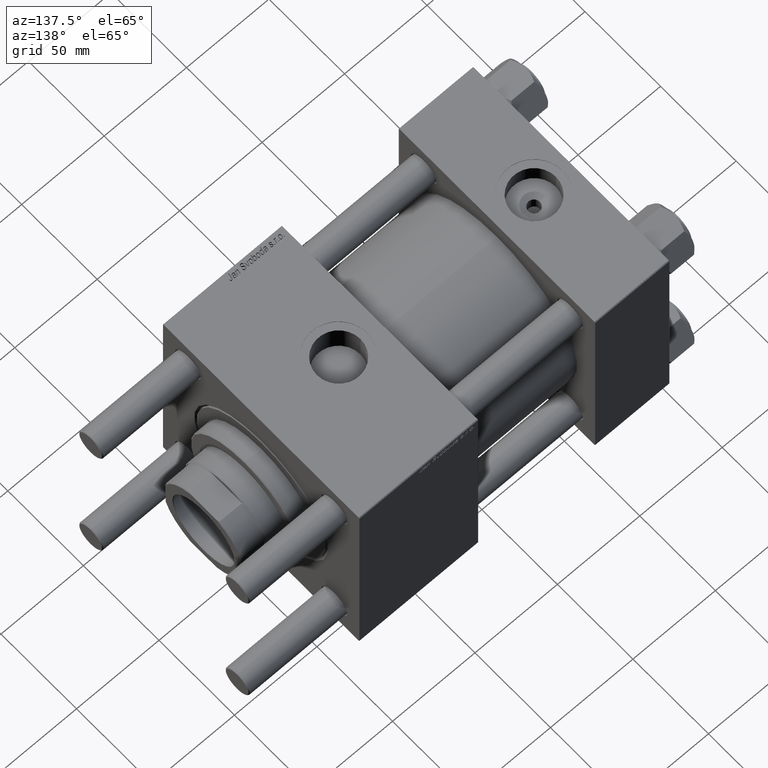
[diagram: clean part render]
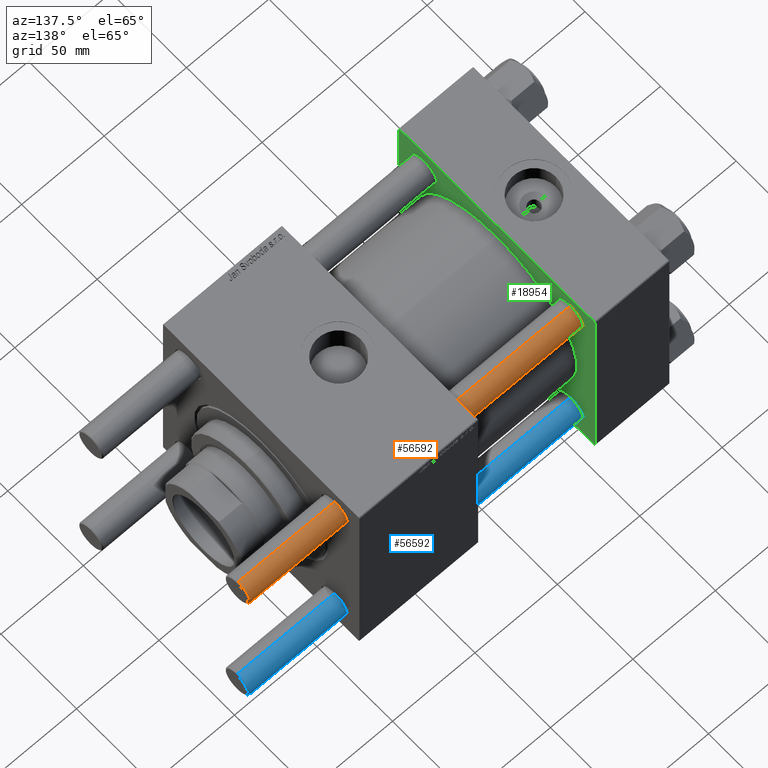
[diagram: same view with three faces highlighted in distinct colors, each labeled with its STEP entity id]
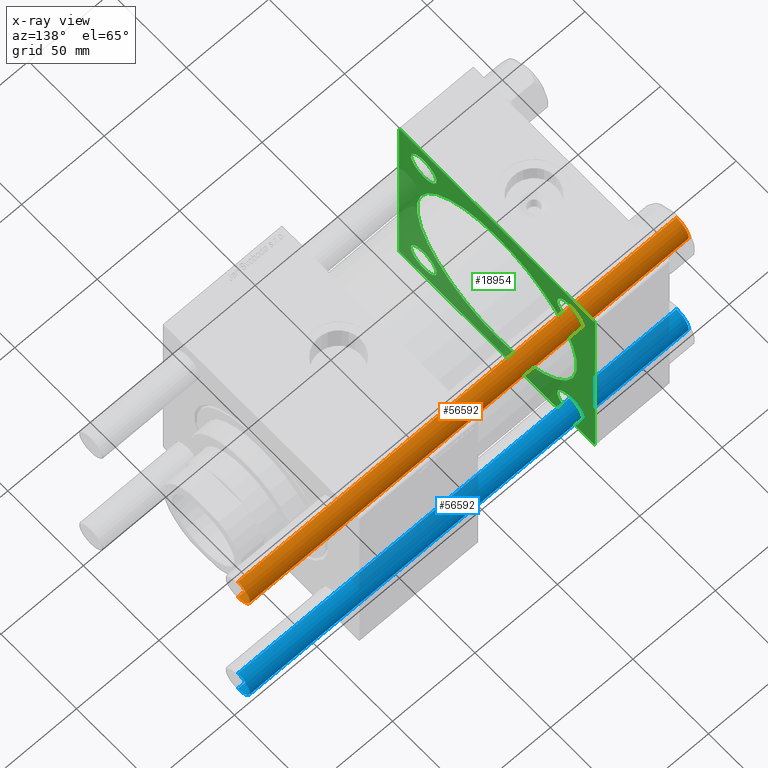
[diagram: x-ray of the same camera — body ghosted, the three highlighted faces saturated]
A machine part, auxiliary view with three faces highlighted in distinct colors.
The next image is the same camera in x-ray (body ghosted, the three faces saturated) — at least one of them is partly hidden behind the body in this view.
Their STEP definitions:

[orange] entity #56592 — the highlighted cylindrical surface (edge-blend (fillet) strip) has radius 8 mm, axis along (1, -0, -0).
#2039 = VERTEX_POINT ( 'NONE', #37528 ) ;
#6804 = ORIENTED_EDGE ( 'NONE', *, *, #56704, .T. ) ;
#6972 = DIRECTION ( 'NONE',  ( -0.000000000000000000, -0.000000000000000000, 1.000000000000000000 ) ) ;
#7949 = ORIENTED_EDGE ( 'NONE', *, *, #58388, .T. ) ;
#8044 = DIRECTION ( 'NONE',  ( -0.000000000000000000, -0.000000000000000000, -1.000000000000000000 ) ) ;
#9190 = CARTESIAN_POINT ( 'NONE',  ( 8.000000000000000000, 9.797174393178825657E-16, 0.5000000000000559552 ) ) ;
#9587 = CYLINDRICAL_SURFACE ( 'NONE', #34745, 8.000000000000000000 ) ;
#9875 = DIRECTION ( 'NONE',  ( -0.000000000000000000, -0.000000000000000000, -1.000000000000000000 ) ) ;
#12598 = EDGE_CURVE ( 'NONE', #2039, #16450, #44226, .T. ) ;
#13600 = ORIENTED_EDGE ( 'NONE', *, *, #12598, .T. ) ;
#16420 = CARTESIAN_POINT ( 'NONE',  ( 8.000000000000000000, 9.797174393178825657E-16, 267.0000000000000000 ) ) ;
#16450 = VERTEX_POINT ( 'NONE', #47491 ) ;
#17294 = VECTOR ( 'NONE', #8044, 1000.000000000000000 ) ;
#17519 = ORIENTED_EDGE ( 'NONE', *, *, #27110, .F. ) ;
#20992 = VERTEX_POINT ( 'NONE', #48268 ) ;
#24363 = AXIS2_PLACEMENT_3D ( 'NONE', #47216, #6972, #42453 ) ;
#26821 = CARTESIAN_POINT ( 'NONE',  ( -8.000000000000000000, 0.000000000000000000, 267.0000000000000000 ) ) ;
#27110 = EDGE_CURVE ( 'NONE', #2039, #20992, #48872, .T. ) ;
#28830 = DIRECTION ( 'NONE',  ( 1.000000000000000000, 0.000000000000000000, 0.000000000000000000 ) ) ;
#30133 = EDGE_LOOP ( 'NONE', ( #13600, #6804, #7949, #17519 ) ) ;
#31017 = CIRCLE ( 'NONE', #24363, 8.000000000000000000 ) ;
#32814 = VECTOR ( 'NONE', #48308, 1000.000000000000000 ) ;
#32816 = DIRECTION ( 'NONE',  ( -1.000000000000000000, 0.000000000000000000, 0.000000000000000000 ) ) ;
#34745 = AXIS2_PLACEMENT_3D ( 'NONE', #45941, #9875, #32816 ) ;
#37528 = CARTESIAN_POINT ( 'NONE',  ( -8.000000000000000000, 0.000000000000000000, 266.5000000000000568 ) ) ;
#41932 = VERTEX_POINT ( 'NONE', #9190 ) ;
#42453 = DIRECTION ( 'NONE',  ( 1.000000000000000000, 0.000000000000000000, 0.000000000000000000 ) ) ;
#44226 = CIRCLE ( 'NONE', #51828, 8.000000000000000000 ) ;
#45941 = CARTESIAN_POINT ( 'NONE',  ( 0.000000000000000000, 0.000000000000000000, 267.0000000000000000 ) ) ;
#47216 = CARTESIAN_POINT ( 'NONE',  ( 0.000000000000000000, 0.000000000000000000, 0.5000000000000559552 ) ) ;
#47491 = CARTESIAN_POINT ( 'NONE',  ( 8.000000000000000000, 9.797174393178825657E-16, 266.5000000000000568 ) ) ;
#47599 = DIRECTION ( 'NONE',  ( 0.000000000000000000, 0.000000000000000000, -1.000000000000000000 ) ) ;
#47890 = CARTESIAN_POINT ( 'NONE',  ( 0.000000000000000000, 0.000000000000000000, 266.5000000000000568 ) ) ;
#48008 = LINE ( 'NONE', #16420, #32814 ) ;
#48268 = CARTESIAN_POINT ( 'NONE',  ( -8.000000000000000000, 0.000000000000000000, 0.5000000000000559552 ) ) ;
#48308 = DIRECTION ( 'NONE',  ( -0.000000000000000000, -0.000000000000000000, -1.000000000000000000 ) ) ;
#48872 = LINE ( 'NONE', #26821, #17294 ) ;
#51828 = AXIS2_PLACEMENT_3D ( 'NONE', #47890, #47599, #28830 ) ;
#55478 = FACE_OUTER_BOUND ( 'NONE', #30133, .T. ) ;
#56592 = ADVANCED_FACE ( 'NONE', ( #55478 ), #9587, .T. ) ;
#56704 = EDGE_CURVE ( 'NONE', #16450, #41932, #48008, .T. ) ;
#58388 = EDGE_CURVE ( 'NONE', #41932, #20992, #31017, .T. ) ;

[blue] entity #56592 — the highlighted cylindrical surface (edge-blend (fillet) strip) has radius 8 mm, axis along (-1, -0, 0).
#2039 = VERTEX_POINT ( 'NONE', #37528 ) ;
#6804 = ORIENTED_EDGE ( 'NONE', *, *, #56704, .T. ) ;
#6972 = DIRECTION ( 'NONE',  ( -0.000000000000000000, -0.000000000000000000, 1.000000000000000000 ) ) ;
#7949 = ORIENTED_EDGE ( 'NONE', *, *, #58388, .T. ) ;
#8044 = DIRECTION ( 'NONE',  ( -0.000000000000000000, -0.000000000000000000, -1.000000000000000000 ) ) ;
#9190 = CARTESIAN_POINT ( 'NONE',  ( 8.000000000000000000, 9.797174393178825657E-16, 0.5000000000000559552 ) ) ;
#9587 = CYLINDRICAL_SURFACE ( 'NONE', #34745, 8.000000000000000000 ) ;
#9875 = DIRECTION ( 'NONE',  ( -0.000000000000000000, -0.000000000000000000, -1.000000000000000000 ) ) ;
#12598 = EDGE_CURVE ( 'NONE', #2039, #16450, #44226, .T. ) ;
#13600 = ORIENTED_EDGE ( 'NONE', *, *, #12598, .T. ) ;
#16420 = CARTESIAN_POINT ( 'NONE',  ( 8.000000000000000000, 9.797174393178825657E-16, 267.0000000000000000 ) ) ;
#16450 = VERTEX_POINT ( 'NONE', #47491 ) ;
#17294 = VECTOR ( 'NONE', #8044, 1000.000000000000000 ) ;
#17519 = ORIENTED_EDGE ( 'NONE', *, *, #27110, .F. ) ;
#20992 = VERTEX_POINT ( 'NONE', #48268 ) ;
#24363 = AXIS2_PLACEMENT_3D ( 'NONE', #47216, #6972, #42453 ) ;
#26821 = CARTESIAN_POINT ( 'NONE',  ( -8.000000000000000000, 0.000000000000000000, 267.0000000000000000 ) ) ;
#27110 = EDGE_CURVE ( 'NONE', #2039, #20992, #48872, .T. ) ;
#28830 = DIRECTION ( 'NONE',  ( 1.000000000000000000, 0.000000000000000000, 0.000000000000000000 ) ) ;
#30133 = EDGE_LOOP ( 'NONE', ( #13600, #6804, #7949, #17519 ) ) ;
#31017 = CIRCLE ( 'NONE', #24363, 8.000000000000000000 ) ;
#32814 = VECTOR ( 'NONE', #48308, 1000.000000000000000 ) ;
#32816 = DIRECTION ( 'NONE',  ( -1.000000000000000000, 0.000000000000000000, 0.000000000000000000 ) ) ;
#34745 = AXIS2_PLACEMENT_3D ( 'NONE', #45941, #9875, #32816 ) ;
#37528 = CARTESIAN_POINT ( 'NONE',  ( -8.000000000000000000, 0.000000000000000000, 266.5000000000000568 ) ) ;
#41932 = VERTEX_POINT ( 'NONE', #9190 ) ;
#42453 = DIRECTION ( 'NONE',  ( 1.000000000000000000, 0.000000000000000000, 0.000000000000000000 ) ) ;
#44226 = CIRCLE ( 'NONE', #51828, 8.000000000000000000 ) ;
#45941 = CARTESIAN_POINT ( 'NONE',  ( 0.000000000000000000, 0.000000000000000000, 267.0000000000000000 ) ) ;
#47216 = CARTESIAN_POINT ( 'NONE',  ( 0.000000000000000000, 0.000000000000000000, 0.5000000000000559552 ) ) ;
#47491 = CARTESIAN_POINT ( 'NONE',  ( 8.000000000000000000, 9.797174393178825657E-16, 266.5000000000000568 ) ) ;
#47599 = DIRECTION ( 'NONE',  ( 0.000000000000000000, 0.000000000000000000, -1.000000000000000000 ) ) ;
#47890 = CARTESIAN_POINT ( 'NONE',  ( 0.000000000000000000, 0.000000000000000000, 266.5000000000000568 ) ) ;
#48008 = LINE ( 'NONE', #16420, #32814 ) ;
#48268 = CARTESIAN_POINT ( 'NONE',  ( -8.000000000000000000, 0.000000000000000000, 0.5000000000000559552 ) ) ;
#48308 = DIRECTION ( 'NONE',  ( -0.000000000000000000, -0.000000000000000000, -1.000000000000000000 ) ) ;
#48872 = LINE ( 'NONE', #26821, #17294 ) ;
#51828 = AXIS2_PLACEMENT_3D ( 'NONE', #47890, #47599, #28830 ) ;
#55478 = FACE_OUTER_BOUND ( 'NONE', #30133, .T. ) ;
#56592 = ADVANCED_FACE ( 'NONE', ( #55478 ), #9587, .T. ) ;
#56704 = EDGE_CURVE ( 'NONE', #16450, #41932, #48008, .T. ) ;
#58388 = EDGE_CURVE ( 'NONE', #41932, #20992, #31017, .T. ) ;

[green] entity #18954 — the highlighted planar face has unit normal (-1, 0, 0).
#158 = CARTESIAN_POINT ( 'NONE',  ( 45.00000000000000000, -64.49999999999994316, -65.00000000000000000 ) ) ;
#324 = DIRECTION ( 'NONE',  ( 0.000000000000000000, 0.000000000000000000, 1.000000000000000000 ) ) ;
#824 = CARTESIAN_POINT ( 'NONE',  ( 45.00000000000000000, 65.00000000000000000, -64.99999999999998579 ) ) ;
#895 = ORIENTED_EDGE ( 'NONE', *, *, #26245, .T. ) ;
#1909 = LINE ( 'NONE', #24272, #58677 ) ;
#2466 = VECTOR ( 'NONE', #44922, 1000.000000000000000 ) ;
#2695 = ORIENTED_EDGE ( 'NONE', *, *, #56178, .T. ) ;
#2899 = EDGE_CURVE ( 'NONE', #24928, #40523, #45007, .T. ) ;
#3783 = DIRECTION ( 'NONE',  ( 0.000000000000000000, 0.000000000000000000, 1.000000000000000000 ) ) ;
#4045 = CARTESIAN_POINT ( 'NONE',  ( 45.00000000000000000, -2.602085213965210642E-15, 0.000000000000000000 ) ) ;
#4279 = CIRCLE ( 'NONE', #37567, 8.499999999999980460 ) ;
#4846 = EDGE_LOOP ( 'NONE', ( #895, #41365 ) ) ;
#4914 = EDGE_CURVE ( 'NONE', #37483, #28959, #37469, .T. ) ;
#5107 = DIRECTION ( 'NONE',  ( -1.000000000000000000, 0.000000000000000000, -0.000000000000000000 ) ) ;
#5588 = CARTESIAN_POINT ( 'NONE',  ( 45.00000000000000000, 48.45000000000000995, 39.95000000000003126 ) ) ;
#5707 = LINE ( 'NONE', #18535, #38453 ) ;
#5962 = DIRECTION ( 'NONE',  ( -1.000000000000000000, 0.000000000000000000, -0.000000000000000000 ) ) ;
#6470 = VECTOR ( 'NONE', #41009, 1000.000000000000114 ) ;
#6780 = CARTESIAN_POINT ( 'NONE',  ( 45.00000000000000000, 48.45000000000000995, 56.94999999999999574 ) ) ;
#7286 = CARTESIAN_POINT ( 'NONE',  ( 45.00000000000000000, 48.45000000000000995, -56.94999999999999574 ) ) ;
#8338 = DIRECTION ( 'NONE',  ( 0.000000000000000000, 0.000000000000000000, -1.000000000000000000 ) ) ;
#8370 = CARTESIAN_POINT ( 'NONE',  ( 45.00000000000000000, 65.00000000000000000, 64.49999999999998579 ) ) ;
#9163 = AXIS2_PLACEMENT_3D ( 'NONE', #4045, #22236, #40415 ) ;
#9660 = AXIS2_PLACEMENT_3D ( 'NONE', #50400, #45629, #17934 ) ;
#10087 = CARTESIAN_POINT ( 'NONE',  ( 45.00000000000000000, 65.00000000000000000, 65.00000000000001421 ) ) ;
#10209 = EDGE_LOOP ( 'NONE', ( #32494, #24480 ) ) ;
#10785 = VECTOR ( 'NONE', #23788, 1000.000000000000000 ) ;
#11125 = CARTESIAN_POINT ( 'NONE',  ( 45.00000000000000000, 48.45000000000000995, 48.45000000000001705 ) ) ;
#11739 = EDGE_LOOP ( 'NONE', ( #29734, #20014 ) ) ;
#12105 = CIRCLE ( 'NONE', #22561, 8.499999999999980460 ) ;
#12186 = VECTOR ( 'NONE', #22609, 1000.000000000000000 ) ;
#12341 = VERTEX_POINT ( 'NONE', #55214 ) ;
#12445 = DIRECTION ( 'NONE',  ( -1.000000000000000000, 0.000000000000000000, -0.000000000000000000 ) ) ;
#12617 = FACE_BOUND ( 'NONE', #45969, .T. ) ;
#12848 = DIRECTION ( 'NONE',  ( 0.000000000000000000, 0.000000000000000000, 1.000000000000000000 ) ) ;
#12999 = EDGE_CURVE ( 'NONE', #40523, #24928, #39456, .T. ) ;
#13389 = DIRECTION ( 'NONE',  ( 0.000000000000000000, 0.7071067811865279218, -0.7071067811865671127 ) ) ;
#13907 = CARTESIAN_POINT ( 'NONE',  ( 45.00000000000000000, -65.00000000000000000, 65.00000000000000000 ) ) ;
#14307 = ORIENTED_EDGE ( 'NONE', *, *, #48737, .F. ) ;
#14891 = ORIENTED_EDGE ( 'NONE', *, *, #2899, .T. ) ;
#14947 = FACE_BOUND ( 'NONE', #37631, .T. ) ;
#14950 = CARTESIAN_POINT ( 'NONE',  ( 45.00000000000000000, 48.45000000000000995, -39.95000000000003126 ) ) ;
#15015 = VERTEX_POINT ( 'NONE', #50303 ) ;
#15300 = ORIENTED_EDGE ( 'NONE', *, *, #21208, .T. ) ;
#15802 = VERTEX_POINT ( 'NONE', #5588 ) ;
#15837 = VECTOR ( 'NONE', #13389, 1000.000000000000000 ) ;
#15949 = DIRECTION ( 'NONE',  ( 0.000000000000000000, 0.000000000000000000, 1.000000000000000000 ) ) ;
#16321 = CARTESIAN_POINT ( 'NONE',  ( 45.00000000000000000, -65.00000000000000000, -64.49999999999991473 ) ) ;
#17567 = LINE ( 'NONE', #54507, #31538 ) ;
#17934 = DIRECTION ( 'NONE',  ( 0.000000000000000000, 0.000000000000000000, 1.000000000000000000 ) ) ;
#18037 = EDGE_CURVE ( 'NONE', #20305, #12341, #39639, .T. ) ;
#18103 = EDGE_CURVE ( 'NONE', #28959, #47841, #1909, .T. ) ;
#18533 = CARTESIAN_POINT ( 'NONE',  ( 45.00000000000000000, 0.000000000000000000, 0.000000000000000000 ) ) ;
#18535 = CARTESIAN_POINT ( 'NONE',  ( 45.00000000000000000, 64.49999999999997158, 65.00000000000001421 ) ) ;
#18954 = ADVANCED_FACE ( 'NONE', ( #12617, #46826, #14947, #27773, #33119, #55482 ), #46243, .F. ) ;
#20014 = ORIENTED_EDGE ( 'NONE', *, *, #18037, .F. ) ;
#20042 = CARTESIAN_POINT ( 'NONE',  ( 45.00000000000000000, -48.44999999999999574, 48.45000000000003126 ) ) ;
#20090 = DIRECTION ( 'NONE',  ( -0.000000000000000000, -0.7071067811865672237, -0.7071067811865279218 ) ) ;
#20305 = VERTEX_POINT ( 'NONE', #40776 ) ;
#20365 = ORIENTED_EDGE ( 'NONE', *, *, #12999, .T. ) ;
#21208 = EDGE_CURVE ( 'NONE', #15015, #37238, #22027, .T. ) ;
#21377 = CARTESIAN_POINT ( 'NONE',  ( 45.00000000000000000, 48.45000000000000995, -48.45000000000001705 ) ) ;
#21671 = EDGE_CURVE ( 'NONE', #29925, #36604, #17567, .T. ) ;
#21881 = AXIS2_PLACEMENT_3D ( 'NONE', #31623, #54283, #324 ) ;
#22027 = CIRCLE ( 'NONE', #9660, 8.499999999999980460 ) ;
#22236 = DIRECTION ( 'NONE',  ( 1.000000000000000000, -0.000000000000000000, 0.000000000000000000 ) ) ;
#22561 = AXIS2_PLACEMENT_3D ( 'NONE', #58759, #49212, #12848 ) ;
#22609 = DIRECTION ( 'NONE',  ( 0.000000000000000000, -1.000000000000000000, -1.067522139062650425E-16 ) ) ;
#23027 = AXIS2_PLACEMENT_3D ( 'NONE', #11125, #25427, #56423 ) ;
#23208 = LINE ( 'NONE', #54230, #15837 ) ;
#23302 = DIRECTION ( 'NONE',  ( -0.000000000000000000, 0.000000000000000000, 1.000000000000000000 ) ) ;
#23519 = CARTESIAN_POINT ( 'NONE',  ( 45.00000000000000000, -48.44999999999999574, -48.45000000000003126 ) ) ;
#23788 = DIRECTION ( 'NONE',  ( 0.000000000000000000, -1.000000000000000000, -1.067522139062650425E-16 ) ) ;
#23881 = CARTESIAN_POINT ( 'NONE',  ( 45.00000000000000000, -64.49999999999997158, 65.00000000000000000 ) ) ;
#23922 = DIRECTION ( 'NONE',  ( 0.000000000000000000, 0.000000000000000000, 1.000000000000000000 ) ) ;
#24272 = CARTESIAN_POINT ( 'NONE',  ( 45.00000000000000000, -65.00000000000000000, 64.50000000000000000 ) ) ;
#24469 = CARTESIAN_POINT ( 'NONE',  ( 45.00000000000000000, 64.49999999999997158, 65.00000000000001421 ) ) ;
#24480 = ORIENTED_EDGE ( 'NONE', *, *, #47008, .T. ) ;
#24928 = VERTEX_POINT ( 'NONE', #48190 ) ;
#25427 = DIRECTION ( 'NONE',  ( -1.000000000000000000, 0.000000000000000000, -0.000000000000000000 ) ) ;
#26245 = EDGE_CURVE ( 'NONE', #15802, #43214, #45862, .T. ) ;
#26532 = EDGE_CURVE ( 'NONE', #42147, #33596, #55353, .T. ) ;
#27773 = FACE_BOUND ( 'NONE', #4846, .T. ) ;
#28043 = CARTESIAN_POINT ( 'NONE',  ( 45.00000000000000000, -48.44999999999999574, -39.95000000000004547 ) ) ;
#28621 = CARTESIAN_POINT ( 'NONE',  ( 45.00000000000000000, 48.45000000000000995, 48.45000000000001705 ) ) ;
#28959 = VERTEX_POINT ( 'NONE', #23881 ) ;
#29734 = ORIENTED_EDGE ( 'NONE', *, *, #54108, .F. ) ;
#29925 = VERTEX_POINT ( 'NONE', #8370 ) ;
#30358 = ORIENTED_EDGE ( 'NONE', *, *, #21671, .F. ) ;
#30422 = ORIENTED_EDGE ( 'NONE', *, *, #44113, .T. ) ;
#31486 = VERTEX_POINT ( 'NONE', #158 ) ;
#31538 = VECTOR ( 'NONE', #8338, 1000.000000000000000 ) ;
#31623 = CARTESIAN_POINT ( 'NONE',  ( 45.00000000000000000, -2.602085213965210642E-15, 0.000000000000000000 ) ) ;
#32494 = ORIENTED_EDGE ( 'NONE', *, *, #26532, .T. ) ;
#33119 = FACE_BOUND ( 'NONE', #11739, .T. ) ;
#33496 = EDGE_CURVE ( 'NONE', #29925, #37483, #5707, .T. ) ;
#33596 = VERTEX_POINT ( 'NONE', #14950 ) ;
#34004 = ORIENTED_EDGE ( 'NONE', *, *, #33496, .T. ) ;
#36283 = LINE ( 'NONE', #824, #12186 ) ;
#36511 = LINE ( 'NONE', #50537, #6470 ) ;
#36604 = VERTEX_POINT ( 'NONE', #42093 ) ;
#37238 = VERTEX_POINT ( 'NONE', #28043 ) ;
#37469 = LINE ( 'NONE', #10087, #10785 ) ;
#37483 = VERTEX_POINT ( 'NONE', #24469 ) ;
#37567 = AXIS2_PLACEMENT_3D ( 'NONE', #23519, #54824, #55108 ) ;
#37631 = EDGE_LOOP ( 'NONE', ( #20365, #14891 ) ) ;
#38453 = VECTOR ( 'NONE', #54909, 1000.000000000000114 ) ;
#38581 = DIRECTION ( 'NONE',  ( -1.000000000000000000, 0.000000000000000000, -0.000000000000000000 ) ) ;
#39456 = CIRCLE ( 'NONE', #40403, 8.499999999999980460 ) ;
#39639 = CIRCLE ( 'NONE', #9163, 53.00000000000000711 ) ;
#39954 = CIRCLE ( 'NONE', #21881, 53.00000000000000711 ) ;
#40403 = AXIS2_PLACEMENT_3D ( 'NONE', #43065, #38581, #15949 ) ;
#40415 = DIRECTION ( 'NONE',  ( 0.000000000000000000, 0.000000000000000000, 1.000000000000000000 ) ) ;
#40482 = CARTESIAN_POINT ( 'NONE',  ( 45.00000000000000000, -48.44999999999999574, 39.95000000000004547 ) ) ;
#40523 = VERTEX_POINT ( 'NONE', #40482 ) ;
#40776 = CARTESIAN_POINT ( 'NONE',  ( 45.00000000000000000, 3.888542821515762466E-15, -53.00000000000000711 ) ) ;
#41009 = DIRECTION ( 'NONE',  ( -0.000000000000000000, 0.7071067811865474617, 0.7071067811865474617 ) ) ;
#41024 = LINE ( 'NONE', #13907, #2466 ) ;
#41365 = ORIENTED_EDGE ( 'NONE', *, *, #52071, .T. ) ;
#42093 = CARTESIAN_POINT ( 'NONE',  ( 45.00000000000000000, 65.00000000000000000, -64.49999999999995737 ) ) ;
#42147 = VERTEX_POINT ( 'NONE', #7286 ) ;
#43065 = CARTESIAN_POINT ( 'NONE',  ( 45.00000000000000000, -48.44999999999999574, 48.45000000000003126 ) ) ;
#43214 = VERTEX_POINT ( 'NONE', #6780 ) ;
#43520 = ORIENTED_EDGE ( 'NONE', *, *, #44384, .T. ) ;
#44113 = EDGE_CURVE ( 'NONE', #50864, #31486, #23208, .T. ) ;
#44384 = EDGE_CURVE ( 'NONE', #47841, #50864, #41024, .T. ) ;
#44922 = DIRECTION ( 'NONE',  ( 0.000000000000000000, 0.000000000000000000, -1.000000000000000000 ) ) ;
#45007 = CIRCLE ( 'NONE', #50695, 8.499999999999980460 ) ;
#45629 = DIRECTION ( 'NONE',  ( -1.000000000000000000, 0.000000000000000000, -0.000000000000000000 ) ) ;
#45862 = CIRCLE ( 'NONE', #23027, 8.499999999999980460 ) ;
#45969 = EDGE_LOOP ( 'NONE', ( #15300, #2695 ) ) ;
#46243 = PLANE ( 'NONE',  #46296 ) ;
#46296 = AXIS2_PLACEMENT_3D ( 'NONE', #18533, #5107, #23302 ) ;
#46499 = DIRECTION ( 'NONE',  ( 0.000000000000000000, 0.000000000000000000, 1.000000000000000000 ) ) ;
#46826 = FACE_BOUND ( 'NONE', #10209, .T. ) ;
#47008 = EDGE_CURVE ( 'NONE', #33596, #42147, #12105, .T. ) ;
#47462 = EDGE_LOOP ( 'NONE', ( #14307, #49192, #30358, #34004, #52408, #54180, #43520, #30422 ) ) ;
#47841 = VERTEX_POINT ( 'NONE', #57010 ) ;
#48190 = CARTESIAN_POINT ( 'NONE',  ( 45.00000000000000000, -48.44999999999999574, 56.95000000000000995 ) ) ;
#48417 = CIRCLE ( 'NONE', #57984, 8.499999999999980460 ) ;
#48737 = EDGE_CURVE ( 'NONE', #54506, #31486, #36283, .T. ) ;
#49192 = ORIENTED_EDGE ( 'NONE', *, *, #49715, .T. ) ;
#49212 = DIRECTION ( 'NONE',  ( -1.000000000000000000, 0.000000000000000000, -0.000000000000000000 ) ) ;
#49715 = EDGE_CURVE ( 'NONE', #54506, #36604, #36511, .T. ) ;
#50303 = CARTESIAN_POINT ( 'NONE',  ( 45.00000000000000000, -48.44999999999999574, -56.95000000000000995 ) ) ;
#50400 = CARTESIAN_POINT ( 'NONE',  ( 45.00000000000000000, -48.44999999999999574, -48.45000000000003126 ) ) ;
#50537 = CARTESIAN_POINT ( 'NONE',  ( 45.00000000000000000, 65.00000000000000000, -64.49999999999995737 ) ) ;
#50695 = AXIS2_PLACEMENT_3D ( 'NONE', #20042, #56728, #23922 ) ;
#50864 = VERTEX_POINT ( 'NONE', #16321 ) ;
#51577 = AXIS2_PLACEMENT_3D ( 'NONE', #21377, #12445, #3783 ) ;
#52071 = EDGE_CURVE ( 'NONE', #43214, #15802, #48417, .T. ) ;
#52408 = ORIENTED_EDGE ( 'NONE', *, *, #4914, .T. ) ;
#52907 = CARTESIAN_POINT ( 'NONE',  ( 45.00000000000000000, 64.49999999999997158, -64.99999999999998579 ) ) ;
#54108 = EDGE_CURVE ( 'NONE', #12341, #20305, #39954, .T. ) ;
#54180 = ORIENTED_EDGE ( 'NONE', *, *, #18103, .T. ) ;
#54230 = CARTESIAN_POINT ( 'NONE',  ( 45.00000000000000000, -64.49999999999994316, -65.00000000000000000 ) ) ;
#54283 = DIRECTION ( 'NONE',  ( 1.000000000000000000, -0.000000000000000000, 0.000000000000000000 ) ) ;
#54506 = VERTEX_POINT ( 'NONE', #52907 ) ;
#54507 = CARTESIAN_POINT ( 'NONE',  ( 45.00000000000000000, 65.00000000000000000, 65.00000000000001421 ) ) ;
#54824 = DIRECTION ( 'NONE',  ( -1.000000000000000000, 0.000000000000000000, -0.000000000000000000 ) ) ;
#54909 = DIRECTION ( 'NONE',  ( 0.000000000000000000, -0.7071067811865474617, 0.7071067811865474617 ) ) ;
#55108 = DIRECTION ( 'NONE',  ( 0.000000000000000000, 0.000000000000000000, 1.000000000000000000 ) ) ;
#55214 = CARTESIAN_POINT ( 'NONE',  ( 45.00000000000000000, -2.602085213965210642E-15, 53.00000000000000711 ) ) ;
#55353 = CIRCLE ( 'NONE', #51577, 8.499999999999980460 ) ;
#55482 = FACE_OUTER_BOUND ( 'NONE', #47462, .T. ) ;
#56178 = EDGE_CURVE ( 'NONE', #37238, #15015, #4279, .T. ) ;
#56423 = DIRECTION ( 'NONE',  ( 0.000000000000000000, 0.000000000000000000, 1.000000000000000000 ) ) ;
#56728 = DIRECTION ( 'NONE',  ( -1.000000000000000000, 0.000000000000000000, -0.000000000000000000 ) ) ;
#57010 = CARTESIAN_POINT ( 'NONE',  ( 45.00000000000000000, -65.00000000000000000, 64.50000000000000000 ) ) ;
#57984 = AXIS2_PLACEMENT_3D ( 'NONE', #28621, #5962, #46499 ) ;
#58677 = VECTOR ( 'NONE', #20090, 1000.000000000000000 ) ;
#58759 = CARTESIAN_POINT ( 'NONE',  ( 45.00000000000000000, 48.45000000000000995, -48.45000000000001705 ) ) ;